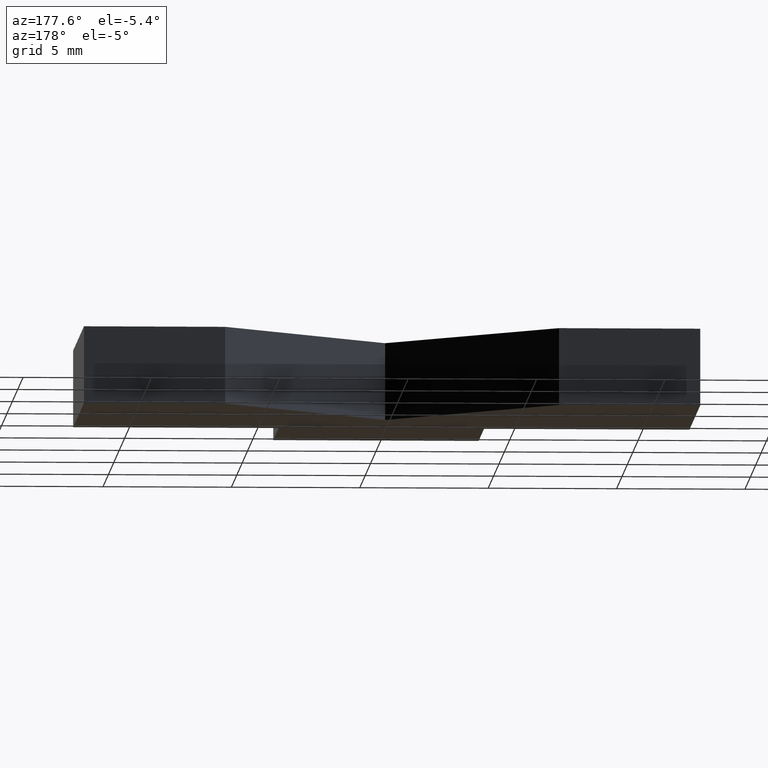
[diagram: clean part render]
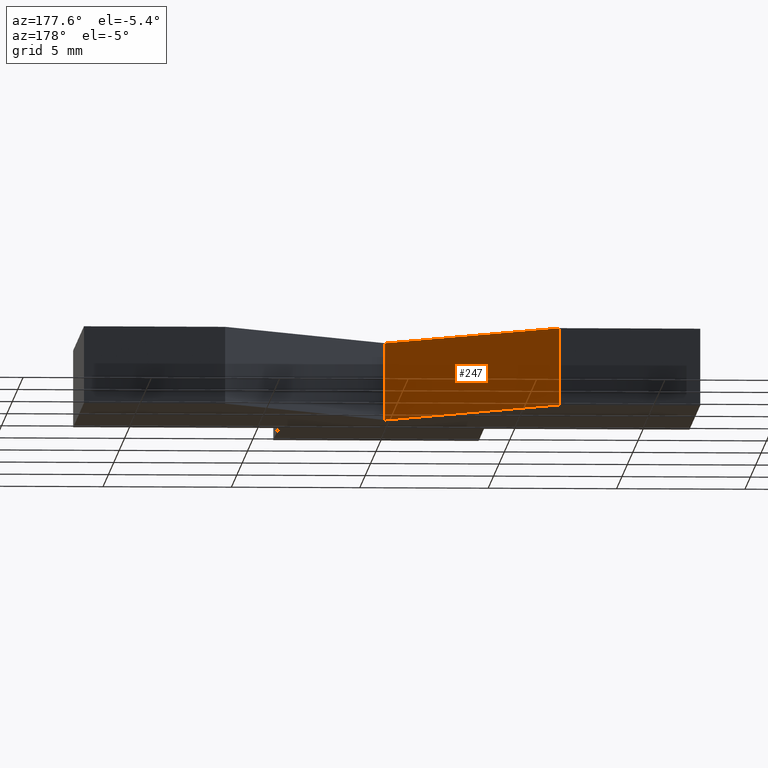
[diagram: same view with one face highlighted and labeled with its STEP entity id]
A machine part, auxiliary view. The second image highlights one B-rep face of the part: STEP entity #247.
In plain terms, the highlighted planar face has unit normal (0.7071, 0.7071, 0).
Its self-contained STEP definition (entity closure, byte-faithful):
#21=FACE_OUTER_BOUND('',#34,.T.);
#34=EDGE_LOOP('',(#190,#191,#192,#193));
#47=LINE('',#366,#80);
#61=LINE('',#393,#94);
#62=LINE('',#396,#95);
#63=LINE('',#397,#96);
#80=VECTOR('',#300,10.);
#94=VECTOR('',#322,10.);
#95=VECTOR('',#325,10.);
#96=VECTOR('',#326,10.);
#113=VERTEX_POINT('',#363);
#114=VERTEX_POINT('',#365);
#123=VERTEX_POINT('',#391);
#124=VERTEX_POINT('',#395);
#135=EDGE_CURVE('',#114,#113,#47,.T.);
#149=EDGE_CURVE('',#123,#113,#61,.T.);
#150=EDGE_CURVE('',#123,#124,#62,.T.);
#151=EDGE_CURVE('',#124,#114,#63,.T.);
#190=ORIENTED_EDGE('',*,*,#150,.T.);
#191=ORIENTED_EDGE('',*,*,#151,.T.);
#192=ORIENTED_EDGE('',*,*,#135,.T.);
#193=ORIENTED_EDGE('',*,*,#149,.F.);
#234=PLANE('',#283);
#247=ADVANCED_FACE('',(#21),#234,.T.);
#283=AXIS2_PLACEMENT_3D('',#394,#323,#324);
#300=DIRECTION('',(-0.707106781186548,0.707106781186547,0.));
#322=DIRECTION('',(0.,0.,-1.));
#323=DIRECTION('center_axis',(0.707106781186547,0.707106781186548,0.));
#324=DIRECTION('ref_axis',(0.,0.,-1.));
#325=DIRECTION('',(0.707106781186548,-0.707106781186547,0.));
#326=DIRECTION('',(0.,0.,-1.));
#363=CARTESIAN_POINT('',(-6.5,15.,-1.5));
#365=CARTESIAN_POINT('',(-1.11022302462516E-15,8.5,-1.5));
#366=CARTESIAN_POINT('',(-6.5,15.,-1.5));
#391=CARTESIAN_POINT('',(-6.5,15.,1.5));
#393=CARTESIAN_POINT('',(-6.5,15.,0.));
#394=CARTESIAN_POINT('Origin',(-6.5,15.,0.));
#395=CARTESIAN_POINT('',(-1.11022302462516E-15,8.5,1.5));
#396=CARTESIAN_POINT('',(-6.5,15.,1.5));
#397=CARTESIAN_POINT('',(-1.11022302462516E-15,8.5,0.));